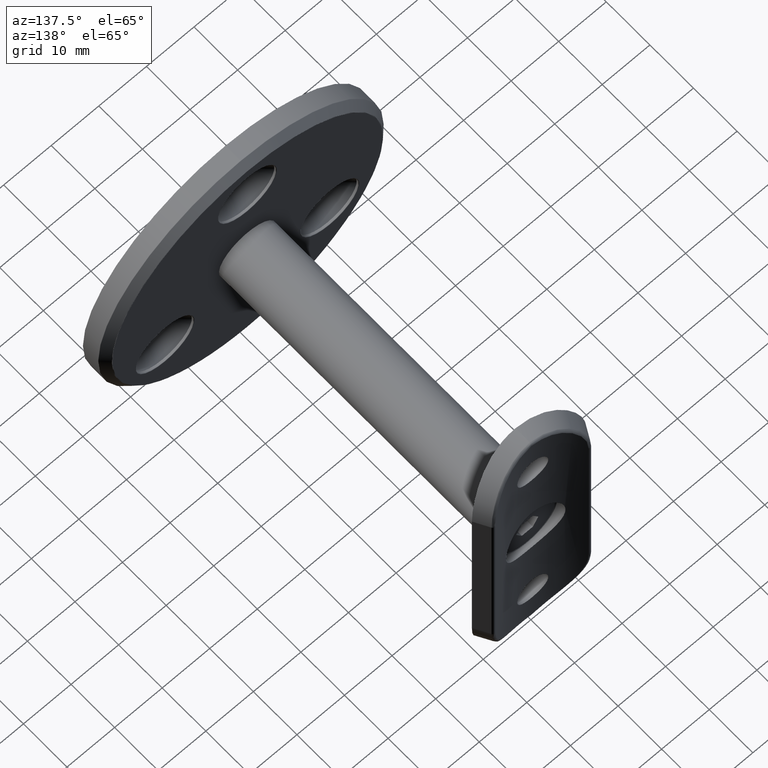
[diagram: clean part render]
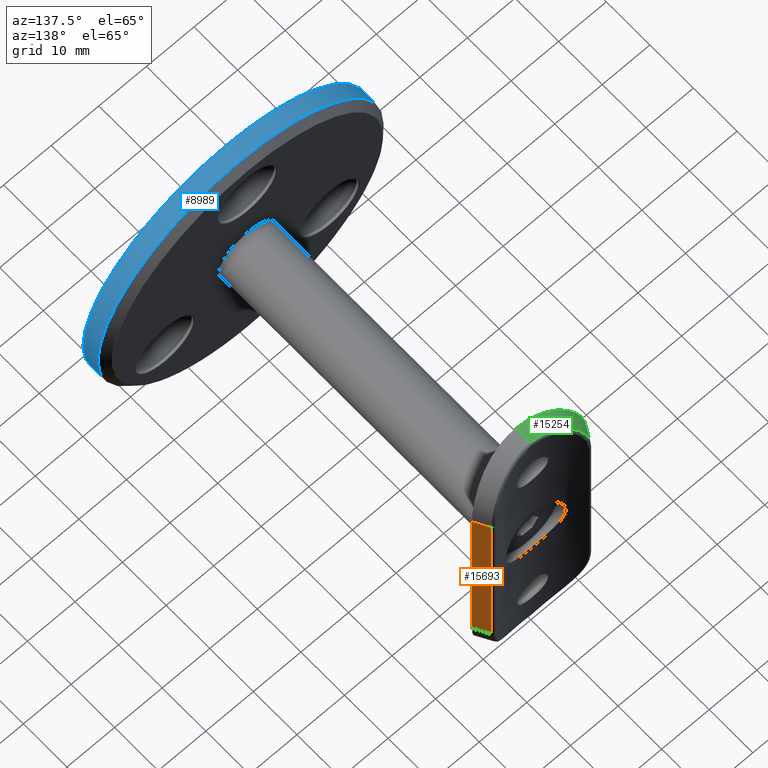
[diagram: same view with three faces highlighted in distinct colors, each labeled with its STEP entity id]
A machine part, auxiliary view with three faces highlighted in distinct colors.
Their STEP definitions:

[orange] entity #15693 — the highlighted planar face has unit normal (0.8762, 0.4819, 0).
#627 = VECTOR ( 'NONE', #3944, 1000.000000000000000 ) ;
#834 = EDGE_LOOP ( 'NONE', ( #6178, #4639, #14265, #2358 ) ) ;
#1993 = EDGE_CURVE ( 'NONE', #13404, #16066, #3071, .T. ) ;
#2003 = CARTESIAN_POINT ( 'NONE',  ( -10.45505487545768730, 2.191269701761533462, 31.50000000000000000 ) ) ;
#2234 = VECTOR ( 'NONE', #7217, 1000.000000000000000 ) ;
#2349 = DIRECTION ( 'NONE',  ( -0.4819277108433735468, -0.8762109800277931848, -0.000000000000000000 ) ) ;
#2358 = ORIENTED_EDGE ( 'NONE', *, *, #10968, .F. ) ;
#2476 = PLANE ( 'NONE',  #8776 ) ;
#3071 = LINE ( 'NONE', #2003, #2234 ) ;
#3882 = LINE ( 'NONE', #9968, #13880 ) ;
#3944 = DIRECTION ( 'NONE',  ( 0.000000000000000000, 0.000000000000000000, -1.000000000000000000 ) ) ;
#4074 = VERTEX_POINT ( 'NONE', #10843 ) ;
#4639 = ORIENTED_EDGE ( 'NONE', *, *, #1993, .T. ) ;
#6178 = ORIENTED_EDGE ( 'NONE', *, *, #15013, .T. ) ;
#6579 = CARTESIAN_POINT ( 'NONE',  ( -11.99999999999999822, -0.6176534026920421638, 19.50000000000000000 ) ) ;
#6651 = EDGE_CURVE ( 'NONE', #16066, #15756, #3882, .T. ) ;
#7217 = DIRECTION ( 'NONE',  ( 0.000000000000000000, 0.000000000000000000, -1.000000000000000000 ) ) ;
#7248 = CARTESIAN_POINT ( 'NONE',  ( -10.45505487545768730, 2.191269701761533462, -19.50000000000000000 ) ) ;
#7499 = LINE ( 'NONE', #11760, #627 ) ;
#8064 = DIRECTION ( 'NONE',  ( -0.4819277108433735468, -0.8762109800277931848, 0.000000000000000000 ) ) ;
#8776 = AXIS2_PLACEMENT_3D ( 'NONE', #9507, #12080, #8064 ) ;
#9507 = CARTESIAN_POINT ( 'NONE',  ( -11.99999999999999822, -0.6176534026920421638, 31.50000000000000000 ) ) ;
#9968 = CARTESIAN_POINT ( 'NONE',  ( -11.99999999999999822, -0.6176534026920560416, -19.50000000000000000 ) ) ;
#10218 = VECTOR ( 'NONE', #10743, 1000.000000000000114 ) ;
#10743 = DIRECTION ( 'NONE',  ( 0.4819277108433735468, 0.8762109800277931848, 0.000000000000000000 ) ) ;
#10843 = CARTESIAN_POINT ( 'NONE',  ( -11.99999999999999822, -0.6176534026920421638, 19.50000000000000000 ) ) ;
#10968 = EDGE_CURVE ( 'NONE', #4074, #15756, #7499, .T. ) ;
#11760 = CARTESIAN_POINT ( 'NONE',  ( -11.99999999999999822, -0.6176534026920421638, 31.50000000000000000 ) ) ;
#12080 = DIRECTION ( 'NONE',  ( -0.8762109800277931848, 0.4819277108433735468, 0.000000000000000000 ) ) ;
#13404 = VERTEX_POINT ( 'NONE', #13481 ) ;
#13481 = CARTESIAN_POINT ( 'NONE',  ( -10.45505487545768730, 2.191269701761533462, 19.50000000000000000 ) ) ;
#13880 = VECTOR ( 'NONE', #2349, 1000.000000000000114 ) ;
#14265 = ORIENTED_EDGE ( 'NONE', *, *, #6651, .T. ) ;
#14860 = FACE_OUTER_BOUND ( 'NONE', #834, .T. ) ;
#15013 = EDGE_CURVE ( 'NONE', #4074, #13404, #16274, .T. ) ;
#15693 = ADVANCED_FACE ( 'NONE', ( #14860 ), #2476, .T. ) ;
#15756 = VERTEX_POINT ( 'NONE', #15788 ) ;
#15788 = CARTESIAN_POINT ( 'NONE',  ( -11.99999999999999822, -0.6176534026920421638, -19.50000000000000355 ) ) ;
#16066 = VERTEX_POINT ( 'NONE', #7248 ) ;
#16274 = LINE ( 'NONE', #6579, #10218 ) ;

[blue] entity #8989 — the highlighted cylindrical surface (bore or boss wall) has radius 30 mm, axis along (-0, -1, -0).
#29 = AXIS2_PLACEMENT_3D ( 'NONE', #1681, #14651, #563 ) ;
#56 = ORIENTED_EDGE ( 'NONE', *, *, #6963, .T. ) ;
#563 = DIRECTION ( 'NONE',  ( 0.000000000000000000, 0.000000000000000000, 1.000000000000000000 ) ) ;
#1681 = CARTESIAN_POINT ( 'NONE',  ( 0.000000000000000000, 0.000000000000000000, 0.000000000000000000 ) ) ;
#2785 = CARTESIAN_POINT ( 'NONE',  ( 0.000000000000000000, 3.458578643762678873, 0.000000000000000000 ) ) ;
#2887 = CIRCLE ( 'NONE', #29, 30.00000000000000000 ) ;
#3438 = FACE_OUTER_BOUND ( 'NONE', #7239, .T. ) ;
#4432 = CARTESIAN_POINT ( 'NONE',  ( 0.000000000000000000, 3.458578643762678873, 30.00000000000000000 ) ) ;
#4760 = EDGE_CURVE ( 'NONE', #14630, #14630, #5500, .T. ) ;
#5500 = CIRCLE ( 'NONE', #15808, 30.00000000000000000 ) ;
#6963 = EDGE_CURVE ( 'NONE', #8545, #8545, #2887, .T. ) ;
#7239 = EDGE_LOOP ( 'NONE', ( #10223 ) ) ;
#8545 = VERTEX_POINT ( 'NONE', #13312 ) ;
#8626 = DIRECTION ( 'NONE',  ( 0.000000000000000000, 0.000000000000000000, -1.000000000000000000 ) ) ;
#8738 = CARTESIAN_POINT ( 'NONE',  ( 0.000000000000000000, 5.000000000000000888, 0.000000000000000000 ) ) ;
#8989 = ADVANCED_FACE ( 'NONE', ( #3438, #9156 ), #16039, .T. ) ;
#9156 = FACE_OUTER_BOUND ( 'NONE', #11829, .T. ) ;
#9331 = DIRECTION ( 'NONE',  ( 0.000000000000000000, 0.000000000000000000, 1.000000000000000000 ) ) ;
#10223 = ORIENTED_EDGE ( 'NONE', *, *, #4760, .T. ) ;
#11370 = DIRECTION ( 'NONE',  ( -0.000000000000000000, -1.000000000000000000, -0.000000000000000000 ) ) ;
#11829 = EDGE_LOOP ( 'NONE', ( #56 ) ) ;
#13312 = CARTESIAN_POINT ( 'NONE',  ( 0.000000000000000000, 0.000000000000000000, 30.00000000000000000 ) ) ;
#14630 = VERTEX_POINT ( 'NONE', #4432 ) ;
#14651 = DIRECTION ( 'NONE',  ( 0.000000000000000000, 1.000000000000000000, 0.000000000000000000 ) ) ;
#15780 = DIRECTION ( 'NONE',  ( 0.000000000000000000, -1.000000000000000000, 0.000000000000000000 ) ) ;
#15808 = AXIS2_PLACEMENT_3D ( 'NONE', #2785, #15780, #9331 ) ;
#16039 = CYLINDRICAL_SURFACE ( 'NONE', #16472, 30.00000000000000000 ) ;
#16472 = AXIS2_PLACEMENT_3D ( 'NONE', #8738, #11370, #8626 ) ;

[green] entity #15254 — the highlighted cylindrical surface (partial cylindrical patch) has radius 12 mm, axis along (0.4819, 0.8762, 0).
#46 = CARTESIAN_POINT ( 'NONE',  ( 7.131093571847404000, 0.7641680875062158984, -28.10124151802545356 ) ) ;
#298 = CARTESIAN_POINT ( 'NONE',  ( 11.99999999999999822, -0.6176534026920421638, -19.50000000000000355 ) ) ;
#890 = CARTESIAN_POINT ( 'NONE',  ( -6.724154184893279201E-15, -3.699999999999994849, -31.50000000000000000 ) ) ;
#976 = ORIENTED_EDGE ( 'NONE', *, *, #3084, .T. ) ;
#1030 = EDGE_CURVE ( 'NONE', #7394, #2337, #4459, .T. ) ;
#1175 = CARTESIAN_POINT ( 'NONE',  ( 0.3694255239971084848, -0.4630373677216957362, -31.35580555292283833 ) ) ;
#1246 = CARTESIAN_POINT ( 'NONE',  ( 10.45505487545768197, 2.191269701761547228, -19.50000000000000355 ) ) ;
#1410 = CARTESIAN_POINT ( 'NONE',  ( -2.414865646485437437E-15, -0.4686549437375175930, -31.39852492656308769 ) ) ;
#2315 = CARTESIAN_POINT ( 'NONE',  ( 11.99999999999999822, -0.6176534026920421638, -19.50000000000000355 ) ) ;
#2337 = VERTEX_POINT ( 'NONE', #16673 ) ;
#2601 = CARTESIAN_POINT ( 'NONE',  ( 2.794747767780314973, -3.545827601457971934, -31.23757162576540125 ) ) ;
#2660 = CARTESIAN_POINT ( 'NONE',  ( 1.462267733718380924, -0.4027156887386989514, -31.15653743707208889 ) ) ;
#2859 = VERTEX_POINT ( 'NONE', #16406 ) ;
#2953 = CARTESIAN_POINT ( 'NONE',  ( 10.86337671054186238, -1.207519595627840614, -24.95273175522527964 ) ) ;
#3084 = EDGE_CURVE ( 'NONE', #2859, #2337, #3494, .T. ) ;
#3326 = DIRECTION ( 'NONE',  ( -0.8762109800277926297, -0.4819277108433743240, 0.000000000000000000 ) ) ;
#3494 = B_SPLINE_CURVE_WITH_KNOTS ( 'NONE', 3,
 ( #1410, #1175, #3854, #2660, #12845, #10427, #9097, #15432, #7779, #5153, #7827, #11720, #46, #3795, #12898, #6372, #9037, #14137, #13069, #15489, #14264, #8985, #5205, #6437, #5101, #1246 ),
 .UNSPECIFIED., .F., .F.,
 ( 4, 2, 2, 2, 2, 2, 2, 2, 2, 2, 2, 2, 4 ),
 ( 2.582770404467756845E-19, 0.001112496874376508842, 0.002224993748753017683, 0.004449987497506031897, 0.005562484371882539004, 0.006674981246259046111, 0.008899974995012065529, 0.01001247186938857350, 0.01112496874376507974, 0.01334996249251809743, 0.01446245936689461060, 0.01557495624127112205, 0.01779994999002413800 ),
 .UNSPECIFIED. ) ;
#3707 = ORIENTED_EDGE ( 'NONE', *, *, #15680, .F. ) ;
#3795 = CARTESIAN_POINT ( 'NONE',  ( 7.833305283921840001, 1.019266358118369187, -27.28663773652139923 ) ) ;
#3854 = CARTESIAN_POINT ( 'NONE',  ( 0.7358220946504288040, -0.4485476517704854449, -31.29923357073367285 ) ) ;
#3868 = CARTESIAN_POINT ( 'NONE',  ( 1.613102312184475640, -3.660295573399650060, -31.43708710865749367 ) ) ;
#3918 = CARTESIAN_POINT ( 'NONE',  ( 5.455945028680427633, -3.106646016184993808, -30.40527435075045659 ) ) ;
#4035 = CARTESIAN_POINT ( 'NONE',  ( 9.651496139240760996, -1.754897554413283878, -26.97737785628718044 ) ) ;
#4459 = LINE ( 'NONE', #9381, #4852 ) ;
#4852 = VECTOR ( 'NONE', #13174, 1000.000000000000000 ) ;
#5096 = FACE_OUTER_BOUND ( 'NONE', #13109, .T. ) ;
#5101 = CARTESIAN_POINT ( 'NONE',  ( 10.45505487545768020, 2.191269701761546784, -20.24369463097170296 ) ) ;
#5153 = CARTESIAN_POINT ( 'NONE',  ( 5.467565589066905929, 0.2703062758297825052, -29.45920198927893807 ) ) ;
#5159 = CARTESIAN_POINT ( 'NONE',  ( 3.959980470126877705, -3.386209395477758122, -30.94697538539421799 ) ) ;
#5205 = CARTESIAN_POINT ( 'NONE',  ( 10.21500871849437075, 2.067696369064171869, -22.05711163707681521 ) ) ;
#5282 = CARTESIAN_POINT ( 'NONE',  ( 4.343585444218811098, -3.321130880666914198, -30.82433790244267513 ) ) ;
#5338 = CARTESIAN_POINT ( 'NONE',  ( 9.880202087646573261, -1.657055889912200097, -26.65553979867360823 ) ) ;
#6000 = CARTESIAN_POINT ( 'NONE',  ( -6.724154184893279201E-15, -3.699999999999994849, -31.50000000000000000 ) ) ;
#6287 = ORIENTED_EDGE ( 'NONE', *, *, #7027, .F. ) ;
#6372 = CARTESIAN_POINT ( 'NONE',  ( 8.471561614151772446, 1.269723628537175797, -26.40975643252787464 ) ) ;
#6437 = CARTESIAN_POINT ( 'NONE',  ( 10.39441033852605223, 2.159319790259921490, -20.97575775976510926 ) ) ;
#6502 = CARTESIAN_POINT ( 'NONE',  ( 8.074259893479323935, -2.356718930519097643, -28.69397140321250461 ) ) ;
#6989 =( BOUNDED_CURVE ( )  B_SPLINE_CURVE ( 3, ( #16433, #15298, #11310, #890 ),
 .UNSPECIFIED., .F., .F. ) 
 B_SPLINE_CURVE_WITH_KNOTS ( ( 4, 4 ),
 ( 1.440656393547518066, 1.570796326794896114 ),
 .UNSPECIFIED. ) 
 CURVE ( )  GEOMETRIC_REPRESENTATION_ITEM ( )  RATIONAL_B_SPLINE_CURVE ( ( 1.000000000000000000, 0.9985891310666825671, 0.9985891310666825671, 1.000000000000000000 ) ) 
 REPRESENTATION_ITEM ( '' )  );
#7009 = AXIS2_PLACEMENT_3D ( 'NONE', #15396, #16692, #3326 ) ;
#7027 = EDGE_CURVE ( 'NONE', #2859, #10120, #6989, .T. ) ;
#7394 = VERTEX_POINT ( 'NONE', #2315 ) ;
#7723 = CARTESIAN_POINT ( 'NONE',  ( -6.724154184893279201E-15, -3.699999999999994849, -31.50000000000000000 ) ) ;
#7779 = CARTESIAN_POINT ( 'NONE',  ( 4.850982341867966952, 0.1195039370240575521, -29.84545285072242393 ) ) ;
#7827 = CARTESIAN_POINT ( 'NONE',  ( 5.764533070701301831, 0.3496055397817715016, -29.25166888921781094 ) ) ;
#7903 = CARTESIAN_POINT ( 'NONE',  ( 9.166149050193590497, -1.952978448766014008, -27.58848537800126266 ) ) ;
#8985 = CARTESIAN_POINT ( 'NONE',  ( 10.14034840887877387, 2.029866555024356867, -22.41475408195938002 ) ) ;
#9037 = CARTESIAN_POINT ( 'NONE',  ( 8.663671254142752076, 1.349547193717768323, -26.10600176303315578 ) ) ;
#9046 = CARTESIAN_POINT ( 'NONE',  ( 8.362564540343107922, -2.255537001844014622, -28.43211677885593147 ) ) ;
#9097 = CARTESIAN_POINT ( 'NONE',  ( 3.563487049633604631, -0.1463804021405573363, -30.50564224895478205 ) ) ;
#9340 = CARTESIAN_POINT ( 'NONE',  ( 12.00000000000000000, -0.6176534026920422749, -20.31329885972721527 ) ) ;
#9381 = CARTESIAN_POINT ( 'NONE',  ( 11.99999999999999822, -0.6176534026920421638, -19.50000000000000355 ) ) ;
#9402 = CARTESIAN_POINT ( 'NONE',  ( 11.64449887647196746, -0.8100347474686371285, -22.69149219421942831 ) ) ;
#10120 = VERTEX_POINT ( 'NONE', #6000 ) ;
#10374 = CARTESIAN_POINT ( 'NONE',  ( 3.185422266228731925, -3.498506488204489617, -31.15346151089249460 ) ) ;
#10422 = B_SPLINE_CURVE_WITH_KNOTS ( 'NONE', 3,
 ( #7723, #15725, #3868, #2601, #10374, #5159, #5282, #3918, #13029, #16786, #14326, #6502, #9046, #15668, #7903, #4035, #5338, #10836, #2953, #11965, #9402, #10710, #9340, #298 ),
 .UNSPECIFIED., .F., .F.,
 ( 4, 2, 2, 2, 2, 2, 2, 2, 2, 2, 2, 4 ),
 ( 7.703719777548943412E-34, 0.002406420888280986787, 0.003609631332421481698, 0.004812841776561976176, 0.007219262664842959927, 0.008422473108983450502, 0.009625683553123941943, 0.01082889399726443339, 0.01203210444140492483, 0.01443852532968591638, 0.01684494621796690794, 0.01925136710624789776 ),
 .UNSPECIFIED. ) ;
#10427 = CARTESIAN_POINT ( 'NONE',  ( 2.885545255493505934, -0.2540987631411664172, -30.76614118052227553 ) ) ;
#10710 = CARTESIAN_POINT ( 'NONE',  ( 11.92848259060795613, -0.6574309275929486329, -21.11410712426872394 ) ) ;
#10836 = CARTESIAN_POINT ( 'NONE',  ( 10.51395294504079558, -1.376102020913429813, -25.65610659191669285 ) ) ;
#11310 = CARTESIAN_POINT ( 'NONE',  ( -1.529325360953380007E-15, -2.619075602068019482, -31.49999999999999289 ) ) ;
#11720 = CARTESIAN_POINT ( 'NONE',  ( 6.614694112078479016, 0.5932317887515382582, -28.59215257876479299 ) ) ;
#11855 = CYLINDRICAL_SURFACE ( 'NONE', #7009, 12.00000000000000178 ) ;
#11965 = CARTESIAN_POINT ( 'NONE',  ( 11.42861343239433758, -0.9245719279828026327, -23.47385143687692377 ) ) ;
#12845 = CARTESIAN_POINT ( 'NONE',  ( 1.823709883739444759, -0.3711974704668266067, -31.06997820427040935 ) ) ;
#12898 = CARTESIAN_POINT ( 'NONE',  ( 8.056363116155690562, 1.104545384783348627, -27.00031777044234360 ) ) ;
#13029 = CARTESIAN_POINT ( 'NONE',  ( 6.156121038829926562, -2.936724213265720529, -30.05584034722584974 ) ) ;
#13069 = CARTESIAN_POINT ( 'NONE',  ( 9.493047847731212130, 1.715295632416773186, -24.51326570578500608 ) ) ;
#13109 = EDGE_LOOP ( 'NONE', ( #6287, #976, #14745, #3707 ) ) ;
#13174 = DIRECTION ( 'NONE',  ( -0.4819277108433742685, 0.8762109800277927407, 0.000000000000000000 ) ) ;
#14137 = CARTESIAN_POINT ( 'NONE',  ( 9.196144659064128035, 1.577887941172738007, -25.17001518979865793 ) ) ;
#14264 = CARTESIAN_POINT ( 'NONE',  ( 9.960288091199419824, 1.940309669445860363, -23.12431856137338926 ) ) ;
#14326 = CARTESIAN_POINT ( 'NONE',  ( 7.465386431756499519, -2.556697687672662589, -29.18815436188814161 ) ) ;
#14745 = ORIENTED_EDGE ( 'NONE', *, *, #1030, .F. ) ;
#15254 = ADVANCED_FACE ( 'NONE', ( #5096 ), #11855, .T. ) ;
#15298 = CARTESIAN_POINT ( 'NONE',  ( -1.973506533704087928E-15, -1.540438768114502643, -31.46612718541925346 ) ) ;
#15396 = CARTESIAN_POINT ( 'NONE',  ( 1.485468239666484891, -6.400785932812541823, -19.50000000000000355 ) ) ;
#15432 = CARTESIAN_POINT ( 'NONE',  ( 4.534825437327052455, 0.04882151512689564959, -30.02213823842948059 ) ) ;
#15489 = CARTESIAN_POINT ( 'NONE',  ( 9.854190850945032665, 1.888249747847262405, -23.47806087955932952 ) ) ;
#15668 = CARTESIAN_POINT ( 'NONE',  ( 8.908510052025803816, -2.053669611251316862, -27.87937364185427214 ) ) ;
#15680 = EDGE_CURVE ( 'NONE', #10120, #7394, #10422, .T. ) ;
#15725 = CARTESIAN_POINT ( 'NONE',  ( 0.8125589719993457916, -3.699999999999994849, -31.50000000000000000 ) ) ;
#16406 = CARTESIAN_POINT ( 'NONE',  ( -2.414865646485437437E-15, -0.4686549437375175930, -31.39852492656308769 ) ) ;
#16433 = CARTESIAN_POINT ( 'NONE',  ( -2.414865646485437437E-15, -0.4686549437375175930, -31.39852492656308769 ) ) ;
#16673 = CARTESIAN_POINT ( 'NONE',  ( 10.45505487545768197, 2.191269701761547228, -19.50000000000000355 ) ) ;
#16692 = DIRECTION ( 'NONE',  ( -0.4819277108433742685, 0.8762109800277927407, 0.000000000000000000 ) ) ;
#16786 = CARTESIAN_POINT ( 'NONE',  ( 7.144447545478617378, -2.655485527817237124, -29.42030368926519301 ) ) ;